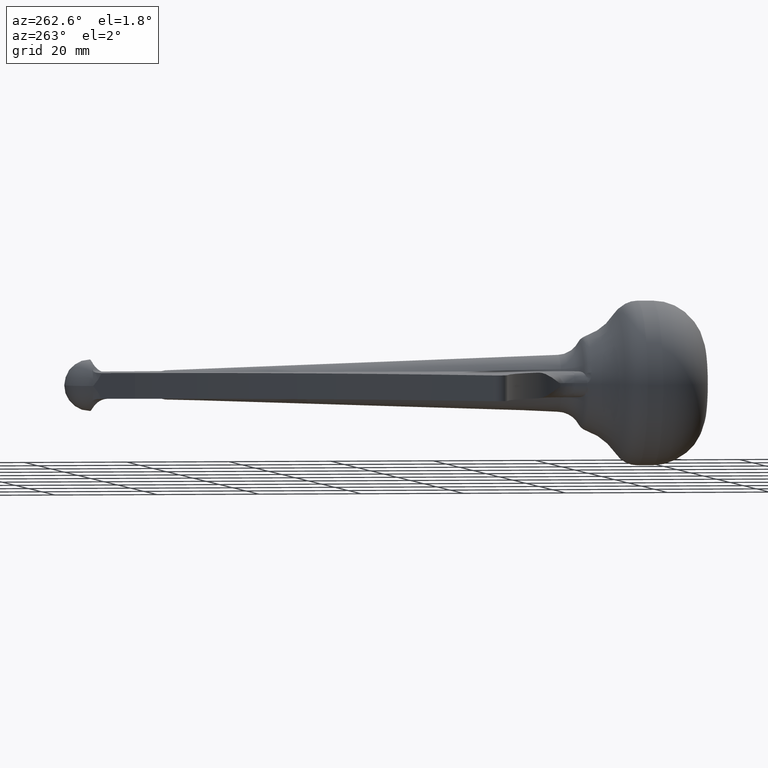
[diagram: clean part render]
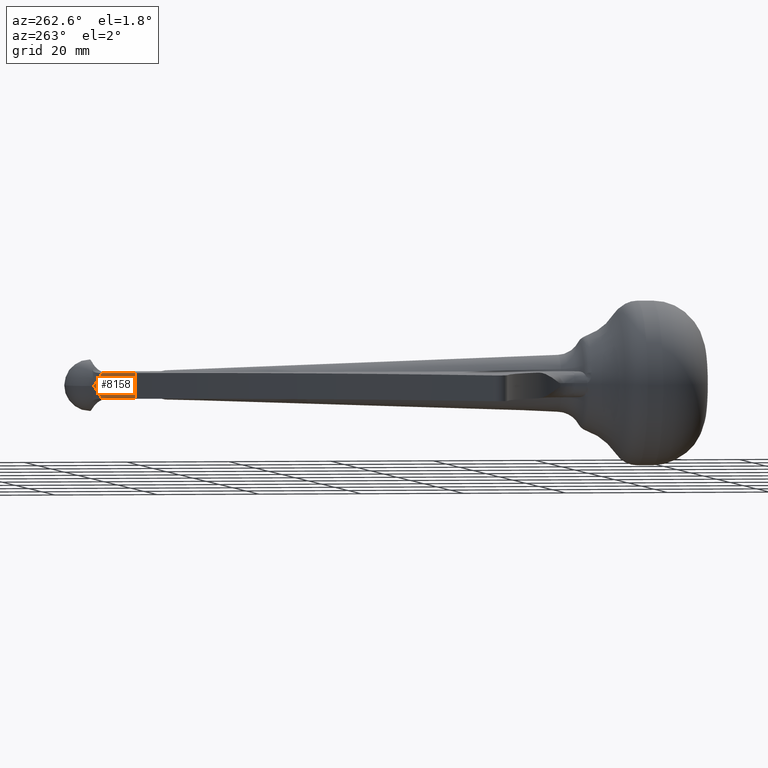
[diagram: same view with one face highlighted and labeled with its STEP entity id]
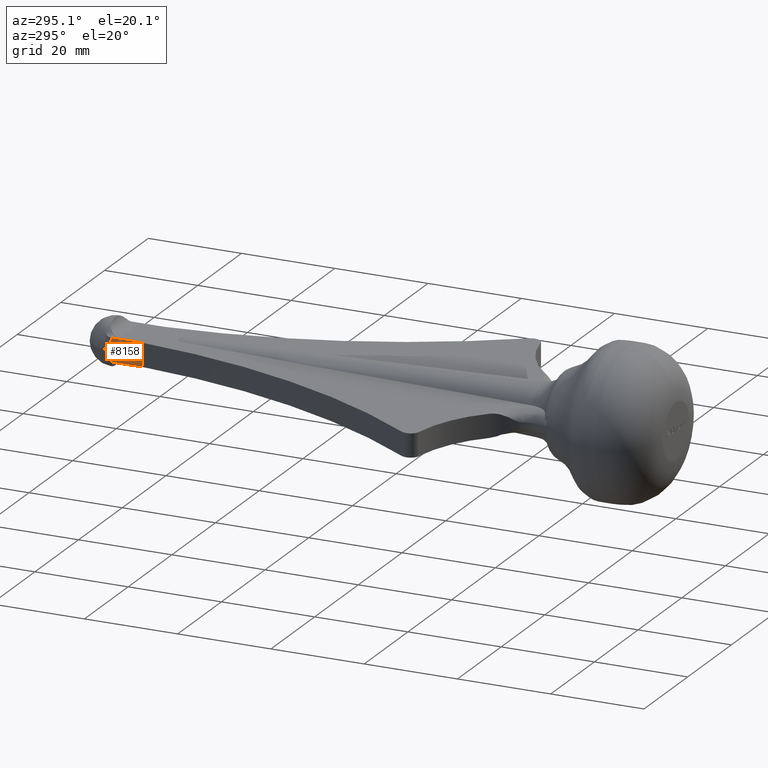
[diagram: same view with one face highlighted and labeled with its STEP entity id]
A machine part, auxiliary view. The second image highlights one B-rep face of the part: STEP entity #8158.
A second angle (auxiliary view) of the same face is appended — the face is thin or edge-on in the first view.
In plain terms, the highlighted planar face has unit normal (-1, -0, 0).
Its self-contained STEP definition (entity closure, byte-faithful):
#188 = LINE ( 'NONE', #8180, #2639 ) ;
#361 = ORIENTED_EDGE ( 'NONE', *, *, #2561, .T. ) ;
#389 = VECTOR ( 'NONE', #5426, 1000.000000000000000 ) ;
#663 = VERTEX_POINT ( 'NONE', #5787 ) ;
#667 = PLANE ( 'NONE',  #9368 ) ;
#788 = CARTESIAN_POINT ( 'NONE',  ( -5.000000000000000000, 118.5254786582083700, 2.501979038078658000 ) ) ;
#803 = CARTESIAN_POINT ( 'NONE',  ( -5.000000000000000000, 120.2000000000000000, 0.0000000000000000000 ) ) ;
#906 = EDGE_CURVE ( 'NONE', #3771, #4235, #6631, .T. ) ;
#1047 = B_SPLINE_CURVE_WITH_KNOTS ( 'NONE', 3,
 ( #803, #8045, #8906, #3566, #9725, #4496, #10545, #5373 ),
 .UNSPECIFIED., .F., .F.,
 ( 4, 2, 2, 4 ),
 ( -0.001172828122140419000, -0.0004140481596805881700, 0.0003447318027792426300, 0.001862291727698880000 ),
 .UNSPECIFIED. ) ;
#1324 = CARTESIAN_POINT ( 'NONE',  ( -5.000000000000000000, 118.5254786582083700, 2.501979038078658000 ) ) ;
#1544 = VERTEX_POINT ( 'NONE', #8967 ) ;
#1575 = CARTESIAN_POINT ( 'NONE',  ( -5.000000000000000000, 120.2000000000000000, -2.500000000000000000 ) ) ;
#2025 = ORIENTED_EDGE ( 'NONE', *, *, #906, .T. ) ;
#2517 = DIRECTION ( 'NONE',  ( -1.000000000000000000, -1.057758217059028900E-016, 0.0000000000000000000 ) ) ;
#2561 = EDGE_CURVE ( 'NONE', #663, #8278, #10978, .T. ) ;
#2595 = CARTESIAN_POINT ( 'NONE',  ( -5.000000000000000000, 118.2635083268962700, 2.500000000000000000 ) ) ;
#2639 = VECTOR ( 'NONE', #2790, 1000.000000000000000 ) ;
#2790 = DIRECTION ( 'NONE',  ( 1.057758217059028900E-016, -1.000000000000000000, 0.0000000000000000000 ) ) ;
#2916 = CARTESIAN_POINT ( 'NONE',  ( -5.000000000000000000, 118.5254786582083700, -2.501979038078655700 ) ) ;
#2984 = FACE_OUTER_BOUND ( 'NONE', #10632, .T. ) ;
#3164 = VERTEX_POINT ( 'NONE', #10783 ) ;
#3281 = CARTESIAN_POINT ( 'NONE',  ( -4.999999999999999100, 118.7207021114246700, 2.035262493595576800 ) ) ;
#3566 = CARTESIAN_POINT ( 'NONE',  ( -5.000000000000000000, 119.5704723935834300, -0.7849048522173752700 ) ) ;
#3771 = VERTEX_POINT ( 'NONE', #2916 ) ;
#3783 = ORIENTED_EDGE ( 'NONE', *, *, #5660, .T. ) ;
#4219 = CARTESIAN_POINT ( 'NONE',  ( -5.000000000000000000, 119.5633013578413400, 0.7796832758034028000 ) ) ;
#4221 = EDGE_CURVE ( 'NONE', #8278, #3164, #8145, .T. ) ;
#4235 = VERTEX_POINT ( 'NONE', #11127 ) ;
#4399 = ORIENTED_EDGE ( 'NONE', *, *, #11016, .T. ) ;
#4496 = CARTESIAN_POINT ( 'NONE',  ( -5.000000000000000900, 118.9838535693713100, -1.600891800093664500 ) ) ;
#4550 = CARTESIAN_POINT ( 'NONE',  ( -5.000000000000032000, 112.0000000000000100, -2.500000000000000000 ) ) ;
#4775 = ORIENTED_EDGE ( 'NONE', *, *, #4221, .T. ) ;
#5103 = CARTESIAN_POINT ( 'NONE',  ( -5.000000000000000000, 120.2000000000000000, 0.0000000000000000000 ) ) ;
#5142 = CARTESIAN_POINT ( 'NONE',  ( -5.000000000000000000, 118.2635083268962700, -2.500000000000000000 ) ) ;
#5166 = CARTESIAN_POINT ( 'NONE',  ( -5.000000000000000000, 118.5254786582083700, -2.501979038078655700 ) ) ;
#5182 = CARTESIAN_POINT ( 'NONE',  ( -5.000000000000000000, 118.3508342623841400, -2.500000000000000400 ) ) ;
#5217 = CARTESIAN_POINT ( 'NONE',  ( -5.000000000000000000, 118.4381614488377300, -2.500744551725800700 ) ) ;
#5222 = LINE ( 'NONE', #4550, #389 ) ;
#5373 = CARTESIAN_POINT ( 'NONE',  ( -5.000000000000000000, 118.5254786582083700, -2.501979038078655700 ) ) ;
#5426 = DIRECTION ( 'NONE',  ( 0.0000000000000000000, 0.0000000000000000000, 1.000000000000000000 ) ) ;
#5660 = EDGE_CURVE ( 'NONE', #4235, #1544, #188, .T. ) ;
#5787 = CARTESIAN_POINT ( 'NONE',  ( -5.000000000000000000, 118.2635083268962700, 2.500000000000000000 ) ) ;
#6222 = CARTESIAN_POINT ( 'NONE',  ( -5.000000000000000000, 118.4381614488377300, 2.500744551725800700 ) ) ;
#6509 = LINE ( 'NONE', #8354, #10773 ) ;
#6631 = B_SPLINE_CURVE_WITH_KNOTS ( 'NONE', 3,
 ( #5166, #5217, #5182, #5142 ),
 .UNSPECIFIED., .F., .F.,
 ( 4, 4 ),
 ( 0.0000000000000000000, 0.0002619778064636058500 ),
 .UNSPECIFIED. ) ;
#8045 = CARTESIAN_POINT ( 'NONE',  ( -4.999999999999999100, 120.0400353783485600, -0.1959163398011436700 ) ) ;
#8145 = B_SPLINE_CURVE_WITH_KNOTS ( 'NONE', 3,
 ( #8664, #3281, #9482, #4219, #10294, #5103 ),
 .UNSPECIFIED., .F., .F.,
 ( 4, 2, 4 ),
 ( -2.141409122794878800E-006, 0.001512792210864873500, 0.003027725830852541900 ),
 .UNSPECIFIED. ) ;
#8158 = ADVANCED_FACE ( 'NONE', ( #2984 ), #667, .T. ) ;
#8180 = CARTESIAN_POINT ( 'NONE',  ( -5.000000000000000000, 120.2000000000000000, -2.500000000000000000 ) ) ;
#8278 = VERTEX_POINT ( 'NONE', #1324 ) ;
#8354 = CARTESIAN_POINT ( 'NONE',  ( -5.000000000000000000, 120.2000000000000000, 2.500000000000000000 ) ) ;
#8664 = CARTESIAN_POINT ( 'NONE',  ( -5.000000000000000000, 118.5254786582083700, 2.501979038078658000 ) ) ;
#8791 = DIRECTION ( 'NONE',  ( 1.057758217059028900E-016, -1.000000000000000000, 0.0000000000000000000 ) ) ;
#8906 = CARTESIAN_POINT ( 'NONE',  ( -5.000000000000000000, 119.8816568130090600, -0.3898881536966019600 ) ) ;
#8967 = CARTESIAN_POINT ( 'NONE',  ( -5.000000000000032000, 112.0000000000000100, -2.500000000000000000 ) ) ;
#8975 = VERTEX_POINT ( 'NONE', #10864 ) ;
#9204 = ORIENTED_EDGE ( 'NONE', *, *, #10080, .F. ) ;
#9368 = AXIS2_PLACEMENT_3D ( 'NONE', #1575, #2517, #8791 ) ;
#9482 = CARTESIAN_POINT ( 'NONE',  ( -5.000000000000000900, 118.9838568467240500, 1.600886380869478000 ) ) ;
#9725 = CARTESIAN_POINT ( 'NONE',  ( -5.000000000000000000, 119.4184336816264500, -0.9849929454464909600 ) ) ;
#9806 = EDGE_CURVE ( 'NONE', #1544, #8975, #5222, .T. ) ;
#9995 = DIRECTION ( 'NONE',  ( 1.057758217059028900E-016, -1.000000000000000000, 0.0000000000000000000 ) ) ;
#10080 = EDGE_CURVE ( 'NONE', #663, #8975, #6509, .T. ) ;
#10135 = ORIENTED_EDGE ( 'NONE', *, *, #9806, .T. ) ;
#10294 = CARTESIAN_POINT ( 'NONE',  ( -5.000000000000000000, 119.8806244295608700, 0.3911545699065510600 ) ) ;
#10490 = CARTESIAN_POINT ( 'NONE',  ( -5.000000000000000000, 118.3508342623841400, 2.500000000000000000 ) ) ;
#10545 = CARTESIAN_POINT ( 'NONE',  ( -5.000000000000000000, 118.7207008854863500, -2.035265424420160700 ) ) ;
#10632 = EDGE_LOOP ( 'NONE', ( #4775, #4399, #2025, #3783, #10135, #9204, #361 ) ) ;
#10773 = VECTOR ( 'NONE', #9995, 1000.000000000000000 ) ;
#10783 = CARTESIAN_POINT ( 'NONE',  ( -5.000000000000000000, 120.2000000000000000, 0.0000000000000000000 ) ) ;
#10864 = CARTESIAN_POINT ( 'NONE',  ( -5.000000000000032000, 112.0000000000000100, 2.500000000000000000 ) ) ;
#10978 = B_SPLINE_CURVE_WITH_KNOTS ( 'NONE', 3,
 ( #2595, #10490, #6222, #788 ),
 .UNSPECIFIED., .F., .F.,
 ( 4, 4 ),
 ( 0.0000000000000000000, 0.0002619778064636058500 ),
 .UNSPECIFIED. ) ;
#11016 = EDGE_CURVE ( 'NONE', #3164, #3771, #1047, .T. ) ;
#11127 = CARTESIAN_POINT ( 'NONE',  ( -5.000000000000000000, 118.2635083268962700, -2.500000000000000000 ) ) ;